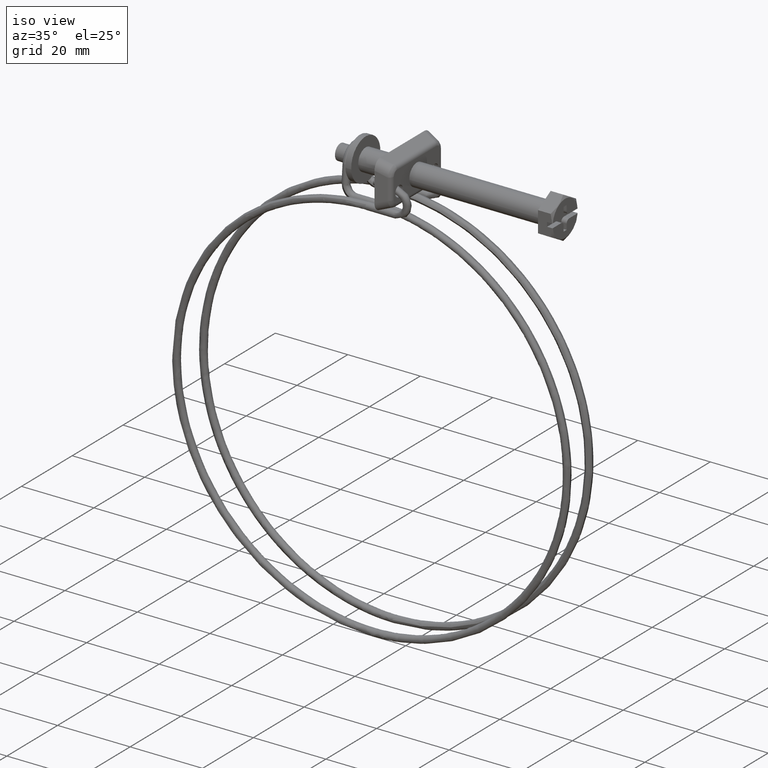
[diagram: clean part render]
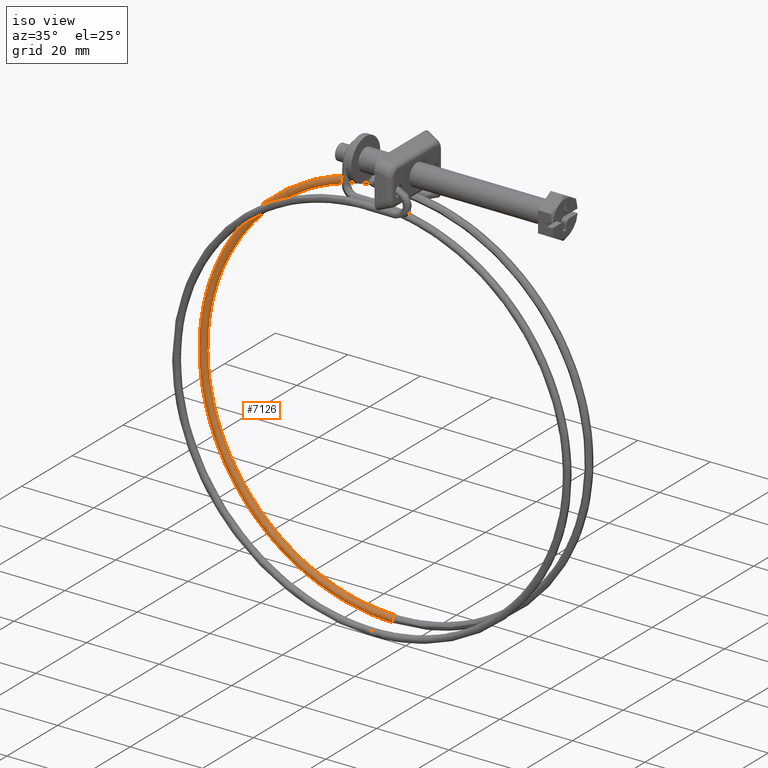
[diagram: same view with one face highlighted and labeled with its STEP entity id]
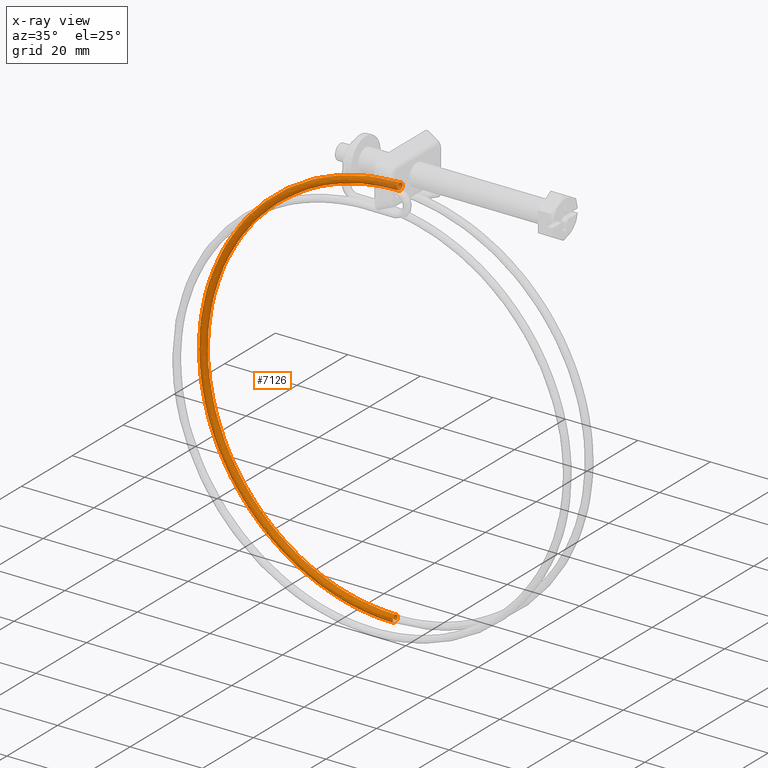
[diagram: x-ray of the same camera — body ghosted, the highlighted face saturated]
A machine part, iso view. The second image highlights one B-rep face of the part: STEP entity #7126.
The next image is the same camera in x-ray: the body ghosted, the highlighted face saturated — about 3% of this face is hidden behind the body in this view.
In plain terms, the highlighted face is a freeform B-spline surface patch.
Its self-contained STEP definition (entity closure, byte-faithful):
#4402=CARTESIAN_POINT('',(-45.950000000001253,5.993943870236258,-6.901769467997067));
#4403=VERTEX_POINT('',#4402);
#4404=CARTESIAN_POINT('',(-45.950000000001282,6.347558764410691,-6.850706005921239));
#4405=VERTEX_POINT('',#4404);
#4406=CARTESIAN_POINT('',(-45.950000000001253,5.993943870236258,-6.901769467997067));
#4407=CARTESIAN_POINT('',(-45.950000000001253,6.107565945187363,-6.863956765413446));
#4408=CARTESIAN_POINT('',(-45.950000000001261,6.227818169487891,-6.846056315023176));
#4409=CARTESIAN_POINT('',(-45.950000000001282,6.347558764410691,-6.850706005921239));
#4410=B_SPLINE_CURVE_WITH_KNOTS('',3,(#4406,#4407,#4408,#4409),.UNSPECIFIED.,.F.,.U.,(4,4),(0.942811844880573,1.0),.UNSPECIFIED.);
#4411=EDGE_CURVE('',#4403,#4405,#4410,.T.);
#4464=CARTESIAN_POINT('',(-45.949999999230187,5.310317513241352,-7.873517655510986));
#4465=VERTEX_POINT('',#4464);
#4471=CARTESIAN_POINT('',(-45.950000000001253,6.272445216753930,-8.849294495147621));
#4472=VERTEX_POINT('',#4471);
#4473=CARTESIAN_POINT('',(-45.950000000001253,6.272445216753930,-8.849294495147621));
#4474=CARTESIAN_POINT('',(-45.949999999893947,6.010825115170453,-8.839462292406115));
#4475=CARTESIAN_POINT('',(-45.949999999745771,5.754861540259292,-8.721993627042931));
#4476=CARTESIAN_POINT('',(-45.949999999462740,5.412625306768874,-8.353043853141834));
#4477=CARTESIAN_POINT('',(-45.949999999329293,5.316564235621505,-8.114710955283950));
#4478=CARTESIAN_POINT('',(-45.949999999230187,5.310317513241352,-7.873517655510986));
#4479=B_SPLINE_CURVE_WITH_KNOTS('',3,(#4473,#4474,#4475,#4476,#4477,#4478),.UNSPECIFIED.,.F.,.U.,(4,2,4),(0.500000000000000,0.625000000000000,0.740274454725661),.UNSPECIFIED.);
#4480=EDGE_CURVE('',#4472,#4465,#4479,.T.);
#4482=CARTESIAN_POINT('',(-45.950000000001268,7.064145850062413,-7.193325013423003));
#4483=VERTEX_POINT('',#4482);
#4484=CARTESIAN_POINT('',(-45.950000000001268,7.064145850062413,-7.193325013423003));
#4485=CARTESIAN_POINT('',(-45.950000000001253,7.228865698449958,-7.383012440738797));
#4486=CARTESIAN_POINT('',(-45.950000000001253,7.318735517172505,-7.636407405261935));
#4487=CARTESIAN_POINT('',(-45.950000000001253,7.299464152284783,-8.149171470304998));
#4488=CARTESIAN_POINT('',(-45.950000000001253,7.181995293398530,-8.405127567066247));
#4489=CARTESIAN_POINT('',(-45.950000000001253,6.798111222217271,-8.761201572999477));
#4490=CARTESIAN_POINT('',(-45.950000000001253,6.534059903814638,-8.859126838008681));
#4491=CARTESIAN_POINT('',(-45.950000000001253,6.272445216753930,-8.849294495147621));
#4492=B_SPLINE_CURVE_WITH_KNOTS('',3,(#4484,#4485,#4486,#4487,#4488,#4489,#4490,#4491),.UNSPECIFIED.,.F.,.U.,(4,2,2,4),(0.130000344779917,0.250000000000000,0.375000000000000,0.500000000000000),.UNSPECIFIED.);
#4493=EDGE_CURVE('',#4483,#4472,#4492,.T.);
#4521=CARTESIAN_POINT('',(-45.949999999230187,5.310317513241352,-7.873517655510986));
#4522=CARTESIAN_POINT('',(-45.949999999240788,5.309789336327403,-7.853162185249206));
#4523=CARTESIAN_POINT('',(-45.949999999251652,5.309900414179763,-7.832786206069345));
#4524=CARTESIAN_POINT('',(-45.949999999405279,5.320474988204586,-7.550725248928600));
#4525=CARTESIAN_POINT('',(-45.949999999585039,5.437917207267644,-7.294662084828541));
#4526=CARTESIAN_POINT('',(-45.949999999841452,5.733948792821269,-7.019888222631137));
#4527=CARTESIAN_POINT('',(-45.949999999927037,5.859285459218810,-6.946830031241563));
#4528=CARTESIAN_POINT('',(-45.950000000001253,5.993943870236258,-6.901769467997067));
#4529=B_SPLINE_CURVE_WITH_KNOTS('',3,(#4521,#4522,#4523,#4524,#4525,#4526,#4527,#4528),.UNSPECIFIED.,.F.,.U.,(4,2,2,4),(0.740274454725661,0.750000000000000,0.875000000000000,0.942811844880573),.UNSPECIFIED.);
#4530=EDGE_CURVE('',#4465,#4403,#4529,.T.);
#6100=CARTESIAN_POINT('',(-45.949999999998703,4.300002000001977,-113.850001000000010));
#6101=VERTEX_POINT('',#6100);
#6102=CARTESIAN_POINT('',(-45.949999999996209,3.302485887037371,-114.780271342044100));
#6103=VERTEX_POINT('',#6102);
#6104=CARTESIAN_POINT('',(-45.949999999998703,4.300002000001977,-113.850001000000010));
#6105=CARTESIAN_POINT('',(-45.949999999998347,4.038195655371243,-113.850000495566110));
#6106=CARTESIAN_POINT('',(-45.949999999997871,3.777998799464677,-113.957772896960090));
#6107=CARTESIAN_POINT('',(-45.949999999996962,3.424196145427989,-114.311556064540000));
#6108=CARTESIAN_POINT('',(-45.949999999996528,3.319730377710315,-114.542534340298000));
#6109=CARTESIAN_POINT('',(-45.949999999996209,3.302485887037371,-114.780271342044100));
#6110=B_SPLINE_CURVE_WITH_KNOTS('',3,(#6104,#6105,#6106,#6107,#6108,#6109),.UNSPECIFIED.,.F.,.U.,(4,2,4),(0.500000000000000,0.625000000000000,0.738888458187352),.UNSPECIFIED.);
#6111=EDGE_CURVE('',#6101,#6103,#6110,.T.);
#6132=CARTESIAN_POINT('',(-45.949999999970082,4.287435984473554,-115.849920191922910));
#6133=VERTEX_POINT('',#6132);
#6149=CARTESIAN_POINT('',(-45.949999999998703,4.300002000001980,-115.850001000000010));
#6150=VERTEX_POINT('',#6149);
#6151=CARTESIAN_POINT('',(-45.949999999970082,4.287435984473554,-115.849920191922910));
#6152=CARTESIAN_POINT('',(-45.949999999979617,4.291624042900677,-115.849974639911690));
#6153=CARTESIAN_POINT('',(-45.949999999989160,4.295812815062056,-115.850001617475900));
#6154=CARTESIAN_POINT('',(-45.949999999998703,4.300002000001980,-115.850001000000010));
#6155=B_SPLINE_CURVE_WITH_KNOTS('',3,(#6151,#6152,#6153,#6154),.UNSPECIFIED.,.F.,.U.,(4,4),(0.997999815404249,1.0),.UNSPECIFIED.);
#6156=EDGE_CURVE('',#6133,#6150,#6155,.T.);
#6158=CARTESIAN_POINT('',(-45.949999999998703,5.028950952946322,-115.534536709492700));
#6159=VERTEX_POINT('',#6158);
#6169=CARTESIAN_POINT('',(-45.949999999998703,5.028950952946322,-115.534536709492700));
#6170=CARTESIAN_POINT('',(-45.949999999998703,5.200678688409346,-115.351169156825510));
#6171=CARTESIAN_POINT('',(-45.949999999998703,5.300002000001980,-115.101327939052790));
#6172=CARTESIAN_POINT('',(-45.949999999998703,5.300002000001980,-114.588201612200610));
#6173=CARTESIAN_POINT('',(-45.949999999998703,5.192228903611790,-114.328014341236600));
#6174=CARTESIAN_POINT('',(-45.949999999998703,4.821988658765260,-113.957774096390000));
#6175=CARTESIAN_POINT('',(-45.949999999998703,4.561801387801131,-113.850001000000010));
#6176=CARTESIAN_POINT('',(-45.949999999998703,4.300002000001977,-113.850001000000010));
#6177=B_SPLINE_CURVE_WITH_KNOTS('',3,(#6169,#6170,#6171,#6172,#6173,#6174,#6175,#6176),.UNSPECIFIED.,.F.,.U.,(4,2,2,4),(0.130000225952701,0.250000000000000,0.375000000000000,0.500000000000000),.UNSPECIFIED.);
#6178=EDGE_CURVE('',#6159,#6101,#6177,.T.);
#6231=CARTESIAN_POINT('',(-45.949999999996209,3.302485887037371,-114.780271342044100));
#6232=CARTESIAN_POINT('',(-45.949999999995917,3.300804588170081,-114.803466287220900));
#6233=CARTESIAN_POINT('',(-45.949999999995633,3.299953544920431,-114.826725569198200));
#6234=CARTESIAN_POINT('',(-45.949999999991860,3.299960689537950,-115.111797701207910));
#6235=CARTESIAN_POINT('',(-45.949999999987106,3.407742793963541,-115.371985962488490));
#6236=CARTESIAN_POINT('',(-45.949999999977777,3.775038524064588,-115.739265955748810));
#6237=CARTESIAN_POINT('',(-45.949999999973258,4.029889019312632,-115.846533327676200));
#6238=CARTESIAN_POINT('',(-45.949999999970082,4.287435984473554,-115.849920191922910));
#6239=B_SPLINE_CURVE_WITH_KNOTS('',3,(#6231,#6232,#6233,#6234,#6235,#6236,#6237,#6238),.UNSPECIFIED.,.F.,.U.,(4,2,2,4),(0.738888458187352,0.750000000000000,0.875000000000000,0.997999815404249),.UNSPECIFIED.);
#6240=EDGE_CURVE('',#6103,#6133,#6239,.T.);
#6785=CARTESIAN_POINT('',(-45.950000000001303,7.064144647543413,-7.193324183006714));
#6786=CARTESIAN_POINT('',(-45.950000000001303,7.228865114062820,-7.383012036945601));
#6787=CARTESIAN_POINT('',(-45.950000000001303,7.318735461905893,-7.636407741084121));
#6788=CARTESIAN_POINT('',(-45.950000000001303,7.299464040711110,-8.149172526626160));
#6789=CARTESIAN_POINT('',(-45.950000000001303,7.181995167255571,-8.405128616700951));
#6790=CARTESIAN_POINT('',(-45.950000000001303,6.798111075806209,-8.761202600783092));
#6791=CARTESIAN_POINT('',(-45.950000000001303,6.534059751829570,-8.859127850762231));
#6792=CARTESIAN_POINT('',(-45.950000000001303,6.010830378827491,-8.839463135257349));
#6793=CARTESIAN_POINT('',(-45.950000000001303,5.754874288752690,-8.721994261801799));
#6794=CARTESIAN_POINT('',(-45.950000000001303,5.398800304670540,-8.338110170352460));
#6795=CARTESIAN_POINT('',(-45.950000000001303,5.300875054691409,-8.074058846375809));
#6796=CARTESIAN_POINT('',(-45.950000000001303,5.320539770196290,-7.550829473373740));
#6797=CARTESIAN_POINT('',(-45.950000000001303,5.438008643651830,-7.294873383298940));
#6798=CARTESIAN_POINT('',(-45.950000000001303,5.821892735101191,-6.938799399216780));
#6799=CARTESIAN_POINT('',(-45.950000000001303,6.085944059077829,-6.840874149237660));
#6800=CARTESIAN_POINT('',(-45.950000000001303,6.347558745578870,-6.850706506990100));
#6801=CARTESIAN_POINT('',(-53.042240930008489,7.064411011787128,-7.193357530854625));
#6802=CARTESIAN_POINT('',(-53.017811388093627,7.229131024462459,-7.383045212856564));
#6803=CARTESIAN_POINT('',(-52.984856884428893,7.319000756627483,-7.636440685430350));
#6804=CARTESIAN_POINT('',(-52.917676367348797,7.299728071376870,-8.149205000130271));
#6805=CARTESIAN_POINT('',(-52.883876716044199,7.182258557233170,-8.405160853931530));
#6806=CARTESIAN_POINT('',(-52.836314024083002,6.798373558888881,-8.761234506185279));
#6807=CARTESIAN_POINT('',(-52.822843866543593,6.534321976926800,-8.859159662319829));
#6808=CARTESIAN_POINT('',(-52.824131610583699,6.011092628607190,-8.839494955793329));
#6809=CARTESIAN_POINT('',(-52.838881582404198,5.755136820946750,-8.722026185106500));
#6810=CARTESIAN_POINT('',(-52.888265419416904,5.399063778011320,-8.338142438246621));
#6811=CARTESIAN_POINT('',(-52.922595187186893,5.301139178329070,-8.074091354353660));
#6812=CARTESIAN_POINT('',(-52.991146735227701,5.320805182785060,-7.550862461915460));
#6813=CARTESIAN_POINT('',(-53.024946386604299,5.438274687095330,-7.294906609372339));
#6814=CARTESIAN_POINT('',(-53.072509078526693,5.822159661126050,-6.938832960160030));
#6815=CARTESIAN_POINT('',(-53.085979236028699,6.086211233965480,-6.840907805098360));
#6816=CARTESIAN_POINT('',(-53.085335364026953,6.347825908585415,-6.850740158305275));
#6817=CARTESIAN_POINT('',(-60.129318017260481,7.037658292734140,-8.603298361143841));
#6818=CARTESIAN_POINT('',(-60.080476900812677,7.202469995884862,-8.788129339616518));
#6819=CARTESIAN_POINT('',(-60.014592130708927,7.292463418406178,-9.034973307270391));
#6820=CARTESIAN_POINT('',(-59.880280506333897,7.273442895236849,-9.534381829074841));
#6821=CARTESIAN_POINT('',(-59.812706062583203,7.156100252815151,-9.783618157611670));
#6822=CARTESIAN_POINT('',(-59.717615660002807,6.772393793018501,-10.130236128388660));
#6823=CARTESIAN_POINT('',(-59.690685251943108,6.508392775838610,-10.225483355268100));
#6824=CARTESIAN_POINT('',(-59.693259792853397,5.985158593518050,-10.206074658144400));
#6825=CARTESIAN_POINT('',(-59.722748888292998,5.729147416946209,-10.091538249739340));
#6826=CARTESIAN_POINT('',(-59.821480241591892,5.372888999811660,-9.717472236218271));
#6827=CARTESIAN_POINT('',(-59.890114528313603,5.274835538982380,-9.460246067228281));
#6828=CARTESIAN_POINT('',(-60.027167206247313,5.294244236081790,-8.950645534774750));
#6829=CARTESIAN_POINT('',(-60.094741649900797,5.411586878503490,-8.701409206140710));
#6830=CARTESIAN_POINT('',(-60.189832052529802,5.795293338297101,-8.354791235266530));
#6831=CARTESIAN_POINT('',(-60.216762460638087,6.059294355498251,-8.259544008484301));
#6832=CARTESIAN_POINT('',(-60.215475190158649,6.320911446655495,-8.269248357046157));
#6833=CARTESIAN_POINT('',(-73.231725198278596,6.935706781065314,-14.030567938202500));
#6834=CARTESIAN_POINT('',(-73.137755786855010,7.100869633271512,-14.196705907124510));
#6835=CARTESIAN_POINT('',(-73.010994698771967,7.191336742228222,-14.418333730607859));
#6836=CARTESIAN_POINT('',(-72.752581599142403,7.173281868585870,-14.866337029488641));
#6837=CARTESIAN_POINT('',(-72.622569609930508,7.056425060718990,-15.089710523218301));
#6838=CARTESIAN_POINT('',(-72.439617420981207,6.673402264749500,-15.399934448851649));
#6839=CARTESIAN_POINT('',(-72.387803810240285,6.409594866946720,-15.484874573597651));
#6840=CARTESIAN_POINT('',(-72.392757179761787,5.886342174657520,-15.466451233158400));
#6841=CARTESIAN_POINT('',(-72.449493657941403,5.630118982714791,-15.363201215733699));
#6842=CARTESIAN_POINT('',(-72.639450969201008,5.273150724696920,-15.026922752230700));
#6843=CARTESIAN_POINT('',(-72.771502076915510,5.174603809441950,-14.795965052486119));
#6844=CARTESIAN_POINT('',(-73.035188913272208,5.193027149905480,-14.338818829138379));
#6845=CARTESIAN_POINT('',(-73.165200902581404,5.309883957772360,-14.115445335505900));
#6846=CARTESIAN_POINT('',(-73.348153091482004,5.692906753744889,-13.805221409969761));
#6847=CARTESIAN_POINT('',(-73.399966702174297,5.956714151526411,-13.720281285126600));
#6848=CARTESIAN_POINT('',(-73.397490017437889,6.218340497674046,-13.729492955346210));
#6849=CARTESIAN_POINT('',(-79.240741991538471,6.860281837913872,-18.045726640449349));
#6850=CARTESIAN_POINT('',(-79.126077719887249,7.025704461008743,-18.198036009609769));
#6851=CARTESIAN_POINT('',(-78.971400068719447,7.116521990818367,-18.401009588796381));
#6852=CARTESIAN_POINT('',(-78.656076715985193,7.099181479421911,-18.810984647730500));
#6853=CARTESIAN_POINT('',(-78.497432218471289,6.982684079254690,-19.015225492507099));
#6854=CARTESIAN_POINT('',(-78.274188514206898,6.600167039924530,-19.298526054866951));
#6855=CARTESIAN_POINT('',(-78.210964004796196,6.336502876701470,-19.375841254907051));
#6856=CARTESIAN_POINT('',(-78.217008253635498,5.813236491217560,-19.358146855510750));
#6857=CARTESIAN_POINT('',(-78.286239792404089,5.556856455837980,-19.263246215252451));
#6858=CARTESIAN_POINT('',(-78.518031355416397,5.199363076086140,-18.954921993283900));
#6859=CARTESIAN_POINT('',(-78.679164045870394,5.100451116152331,-18.743397020663799));
#6860=CARTESIAN_POINT('',(-79.000922569068592,5.118145515533429,-18.325055123792250));
#6861=CARTESIAN_POINT('',(-79.159567066582497,5.234642915697610,-18.120814279015651));
#6862=CARTESIAN_POINT('',(-79.382810770749700,5.617159955030820,-17.837513716704350));
#6863=CARTESIAN_POINT('',(-79.446035280208889,5.880824118259940,-17.760198516567051));
#6864=CARTESIAN_POINT('',(-79.443013155789302,6.142457311001900,-17.769045716265200));
#6865=CARTESIAN_POINT('',(-89.268742537910683,6.671903282078745,-28.073838911888039));
#6866=CARTESIAN_POINT('',(-89.119545455908906,6.837974612852580,-28.191615086002621));
#6867=CARTESIAN_POINT('',(-88.918284384109569,6.929667224130254,-28.348004725693428));
#6868=CARTESIAN_POINT('',(-88.507996825425991,6.914110639643471,-28.663014520519152));
#6869=CARTESIAN_POINT('',(-88.301574234104805,6.798510763197021,-28.819476739144001));
#6870=CARTESIAN_POINT('',(-88.011097446836104,6.417256714524171,-29.035543469407351));
#6871=CARTESIAN_POINT('',(-87.928831958397993,6.153950240950520,-29.093817478337549));
#6872=CARTESIAN_POINT('',(-87.936696520528798,5.630649660419110,-29.077943412546851));
#6873=CARTESIAN_POINT('',(-88.026778142447796,5.373877950882060,-29.003893087641000));
#6874=CARTESIAN_POINT('',(-88.328377100078896,5.015073221366370,-28.765377038250900));
#6875=CARTESIAN_POINT('',(-88.538037239982700,4.915249660880380,-28.602380055589450));
#6876=CARTESIAN_POINT('',(-88.956698014149595,4.931123726686260,-28.280941489440750));
#6877=CARTESIAN_POINT('',(-89.163120605470908,5.046723603135740,-28.124479270815900));
#6878=CARTESIAN_POINT('',(-89.453597392836699,5.427977651805549,-27.908412540503949));
#6879=CARTESIAN_POINT('',(-89.535862881226308,5.691284125373130,-27.850138531670950));
#6880=CARTESIAN_POINT('',(-89.531930600160905,5.952934415638835,-27.858075564566299));
#6881=CARTESIAN_POINT('',(-93.283783373378384,6.559023782915690,-34.082847132095239));
#6882=CARTESIAN_POINT('',(-93.120761785396695,6.725483792744761,-34.179932430954722));
#6883=CARTESIAN_POINT('',(-92.900851991754337,6.817700716977718,-34.308410883139793));
#6884=CARTESIAN_POINT('',(-92.452547450800907,6.803212988390450,-34.566521383509198));
#6885=CARTESIAN_POINT('',(-92.226997874375797,6.688150871367061,-34.694356607302048));
#6886=CARTESIAN_POINT('',(-91.909605694266801,6.307653554947510,-34.870139580738652));
#6887=CARTESIAN_POINT('',(-91.819717538423802,6.044561394366090,-34.917004888258987));
#6888=CARTESIAN_POINT('',(-91.828310825784797,5.521240325560230,-34.902221491729250));
#6889=CARTESIAN_POINT('',(-91.926739353070005,5.264233940932000,-34.840663821383103));
#6890=CARTESIAN_POINT('',(-92.256284276852199,4.904643504371120,-34.643973968081703));
#6891=CARTESIAN_POINT('',(-92.485371390907588,4.804273750197840,-34.510052968320501));
#6892=CARTESIAN_POINT('',(-92.942825004125311,4.819057146715460,-34.246674906719051));
#6893=CARTESIAN_POINT('',(-93.168374580501890,4.934119263732770,-34.118839682901950));
#6894=CARTESIAN_POINT('',(-93.485766760659502,5.314616580158400,-33.943056709441002));
#6895=CARTESIAN_POINT('',(-93.575654916551002,5.577708740736781,-33.896191401969247));
#6896=CARTESIAN_POINT('',(-93.571358272870498,5.839369275139715,-33.903583100234151));
#6897=CARTESIAN_POINT('',(-98.710841336703311,6.312898233923742,-47.185053095692233));
#6898=CARTESIAN_POINT('',(-98.529134375152665,6.480205654605841,-47.237027467959962));
#6899=CARTESIAN_POINT('',(-98.284018737855178,6.573565703194394,-47.304653031355237));
#6900=CARTESIAN_POINT('',(-97.784329972646489,6.561408329363120,-47.438709819086597));
#6901=CARTESIAN_POINT('',(-97.532928126387702,6.447518653140940,-47.504131527584903));
#6902=CARTESIAN_POINT('',(-97.179156767541500,6.068671189245530,-47.592086529831903));
#6903=CARTESIAN_POINT('',(-97.078965719910613,5.806046280887931,-47.614078211369197));
#6904=CARTESIAN_POINT('',(-97.088543961517601,5.282680542874081,-47.601672727880000));
#6905=CARTESIAN_POINT('',(-97.198254269438593,5.025162511883260,-47.567351953724497));
#6906=CARTESIAN_POINT('',(-97.565571307327104,4.663859050997680,-47.461852948473691));
#6907=CARTESIAN_POINT('',(-97.820916160350606,4.562298467369450,-47.391324362623813));
#6908=CARTESIAN_POINT('',(-98.330802655461497,4.574703950870750,-47.254531722081602));
#6909=CARTESIAN_POINT('',(-98.582204501768913,4.688593627099000,-47.189110013607603));
#6910=CARTESIAN_POINT('',(-98.935975860566600,5.067441090988340,-47.101155011384897));
#6911=CARTESIAN_POINT('',(-99.036166908148800,5.330065999348980,-47.079163329799002));
#6912=CARTESIAN_POINT('',(-99.031377787345363,5.591748868355905,-47.085366071543604));
#6913=CARTESIAN_POINT('',(-100.120725091893700,6.179748984292931,-54.273097793995603));
#6914=CARTESIAN_POINT('',(-99.934164433256939,6.347514804853780,-54.300669784440970));
#6915=CARTESIAN_POINT('',(-99.682501347049936,6.441493217083088,-54.335377482090472));
#6916=CARTESIAN_POINT('',(-99.169465058582404,6.430596429353050,-54.402328442189798));
#6917=CARTESIAN_POINT('',(-98.911347848173293,6.317340975253230,-54.433988076878201));
#6918=CARTESIAN_POINT('',(-98.548126664287295,5.939385985413869,-54.474433266044301));
#6919=CARTESIAN_POINT('',(-98.445259346099306,5.677013833266840,-54.482969765841801));
#6920=CARTESIAN_POINT('',(-98.455093438509905,5.153623931817700,-54.471850594685598));
#6921=CARTESIAN_POINT('',(-98.567734292412609,4.895829129966760,-54.452263393737802));
#6922=CARTESIAN_POINT('',(-98.944862983159496,4.533599022770041,-54.396093321932099));
#6923=CARTESIAN_POINT('',(-99.207028524613904,4.431394269826615,-54.359856336962800));
#6924=CARTESIAN_POINT('',(-99.730534941417488,4.442513440979715,-54.291539030714702));
#6925=CARTESIAN_POINT('',(-99.988652151826599,4.555768895079540,-54.259879396026413));
#6926=CARTESIAN_POINT('',(-100.351873335712600,4.933723884921930,-54.219434206860200));
#6927=CARTESIAN_POINT('',(-100.454740653900600,5.196096037065930,-54.210897707062813));
#6928=CARTESIAN_POINT('',(-100.449823607695290,5.457790987790499,-54.216457292640847));
#6929=CARTESIAN_POINT('',(-100.120725091893700,5.913345721899495,-68.454764134318253));
#6930=CARTESIAN_POINT('',(-99.934164433256939,6.082028699340981,-68.433512350206229));
#6931=CARTESIAN_POINT('',(-99.682501347049936,6.177244320587935,-68.402358671283196));
#6932=CARTESIAN_POINT('',(-99.169465058582404,6.168869687123190,-68.335045696639611));
#6933=CARTESIAN_POINT('',(-98.911347848173293,6.056883171377290,-68.299154881061895));
#6934=CARTESIAN_POINT('',(-98.548126664287295,5.680713824920749,-68.244543431131305));
#6935=CARTESIAN_POINT('',(-98.445259346099306,5.418847382127010,-68.226159084922799));
#6936=CARTESIAN_POINT('',(-98.455093438509905,4.895409134975781,-68.217613540574092));
#6937=CARTESIAN_POINT('',(-98.567734292412609,4.637060575787790,-68.227504964456500));
#6938=CARTESIAN_POINT('',(-98.944862983159496,4.272976454055826,-68.270031189659505));
#6939=CARTESIAN_POINT('',(-99.207028524613904,4.169482860629930,-68.302404121616206));
#6940=CARTESIAN_POINT('',(-99.730534941417488,4.178028404981705,-68.371090830460503));
#6941=CARTESIAN_POINT('',(-99.988652151826599,4.290014920727605,-68.406981646038204));
#6942=CARTESIAN_POINT('',(-100.351873335712600,4.666184267181110,-68.461593095968709));
#6943=CARTESIAN_POINT('',(-100.454740653900600,4.928050709977890,-68.479977442177301));
#6944=CARTESIAN_POINT('',(-100.449823607695290,5.189769833553505,-68.484250214351647));
#6945=CARTESIAN_POINT('',(-98.710841336799561,5.780196472267008,-75.542808832523960));
#6946=CARTESIAN_POINT('',(-98.529134375248859,5.949337849586118,-75.497154666585971));
#6947=CARTESIAN_POINT('',(-98.284018737951470,6.045171834476638,-75.433083121873281));
#6948=CARTESIAN_POINT('',(-97.784329972742796,6.038057787113131,-75.298664319645297));
#6949=CARTESIAN_POINT('',(-97.532928126483995,5.926705493489580,-75.229011430306301));
#6950=CARTESIAN_POINT('',(-97.179156767686308,5.551428621089100,-75.126890167246302));
#6951=CARTESIAN_POINT('',(-97.078965720006906,5.289814934508970,-75.095050639273694));
#6952=CARTESIAN_POINT('',(-97.088543961613809,4.766352523925480,-75.087791407209309));
#6953=CARTESIAN_POINT('',(-97.198254269583501,4.507727193871289,-75.112416404348110));
#6954=CARTESIAN_POINT('',(-97.565571307423298,4.142716425831226,-75.204271563069000));
#6955=CARTESIAN_POINT('',(-97.820916160446899,4.038578663087100,-75.270936095833491));
#6956=CARTESIAN_POINT('',(-98.330802655557804,4.045837895096750,-75.408098138971795));
#6957=CARTESIAN_POINT('',(-98.582204501865206,4.157190188708150,-75.477751028359492));
#6958=CARTESIAN_POINT('',(-98.935975860662907,4.532467061114709,-75.579872291273688));
#6959=CARTESIAN_POINT('',(-99.036166908245093,4.794080747697870,-75.611711819294896));
#6960=CARTESIAN_POINT('',(-99.031377787441599,5.055811952992656,-75.615341435327096));
#6961=CARTESIAN_POINT('',(-93.283783373280230,5.534070923278419,-88.645014796315749));
#6962=CARTESIAN_POINT('',(-93.120761785298598,5.704059711452802,-88.554249703793118));
#6963=CARTESIAN_POINT('',(-92.900851991656154,5.801036820693316,-88.429325270378470));
#6964=CARTESIAN_POINT('',(-92.452547450702809,5.796253128085800,-88.170852755417101));
#6965=CARTESIAN_POINT('',(-92.226997874277600,5.686073275263470,-88.038786350686308));
#6966=CARTESIAN_POINT('',(-91.909605694120103,5.312446255387120,-87.848837116533886));
#6967=CARTESIAN_POINT('',(-91.819717538325705,5.051299821024740,-87.792123962626818));
#6968=CARTESIAN_POINT('',(-91.828310825686700,4.527792741227180,-87.787242643700296));
#6969=CARTESIAN_POINT('',(-91.926739352923192,4.268655764822550,-87.839104536932496));
#6970=CARTESIAN_POINT('',(-92.256284276754101,3.901931972451705,-88.022150543558197));
#6971=CARTESIAN_POINT('',(-92.485371390809391,3.796603380258711,-88.152207490379809));
#6972=CARTESIAN_POINT('',(-92.942825004027199,3.801484699239890,-88.415954954577401));
#6973=CARTESIAN_POINT('',(-93.168374580403793,3.911664552074380,-88.548021359259593));
#6974=CARTESIAN_POINT('',(-93.485766760561305,4.285291571944645,-88.737970593557804));
#6975=CARTESIAN_POINT('',(-93.575654916452891,4.546438006303999,-88.794683747416300));
#6976=CARTESIAN_POINT('',(-93.571358272772400,4.808191546199740,-88.797124406879547));
#6977=CARTESIAN_POINT('',(-89.268742537888727,5.421191424125432,-94.654023016375120));
#6978=CARTESIAN_POINT('',(-89.119545455908252,5.591568891355044,-94.542567048594080));
#6979=CARTESIAN_POINT('',(-88.918284384107793,5.689070313550889,-94.389731427630892));
#6980=CARTESIAN_POINT('',(-88.507996825376210,5.685355476845860,-94.074359618308904));
#6981=CARTESIAN_POINT('',(-88.301574234054698,5.575713383449620,-93.913666218794987));
#6982=CARTESIAN_POINT('',(-88.011097446834299,5.202843095823530,-93.683433227767594));
#6983=CARTESIAN_POINT('',(-87.928831958396003,4.941910974447290,-93.615311372377803));
#6984=CARTESIAN_POINT('',(-87.936696520526894,4.418383406381365,-93.611520722712200));
#6985=CARTESIAN_POINT('',(-88.026778142446005,4.159011754873405,-93.675875270552694));
#6986=CARTESIAN_POINT('',(-88.328377100028888,3.791502255463465,-93.900747473339592));
#6987=CARTESIAN_POINT('',(-88.538037239932905,3.685627469577105,-94.059880402988313));
#6988=CARTESIAN_POINT('',(-88.956698014148898,3.689418119282185,-94.381688371684106));
#6989=CARTESIAN_POINT('',(-89.163120605470311,3.799060212678435,-94.542381771198009));
#6990=CARTESIAN_POINT('',(-89.453597392787913,4.171930500301485,-94.772614762274003));
#6991=CARTESIAN_POINT('',(-89.535862881226208,4.432862621680756,-94.840736617615207));
#6992=CARTESIAN_POINT('',(-89.531930600160749,4.694626405713718,-94.842631942448008));
#6993=CARTESIAN_POINT('',(-79.240741991556703,5.232812868266832,-104.682135287913890));
#6994=CARTESIAN_POINT('',(-79.126077719884194,5.403839043173175,-104.536146125086600));
#6995=CARTESIAN_POINT('',(-78.971400068717529,5.502215546842566,-104.336726564625290));
#6996=CARTESIAN_POINT('',(-78.656076716031393,5.500284637041271,-103.926389491098600));
#6997=CARTESIAN_POINT('',(-78.497432218517787,5.391540067359730,-103.717917465432390));
#6998=CARTESIAN_POINT('',(-78.274188514205093,5.019932770397049,-103.420450642308000));
#6999=CARTESIAN_POINT('',(-78.210964004794491,4.759358338688450,-103.333287595905200));
#7000=CARTESIAN_POINT('',(-78.217008253633793,4.235796575568945,-103.331317279748010));
#7001=CARTESIAN_POINT('',(-78.286239792402284,3.976033249915665,-103.416522142941200));
#7002=CARTESIAN_POINT('',(-78.518031355462796,3.607212400735775,-103.711202518307200));
#7003=CARTESIAN_POINT('',(-78.679164045916508,3.500426014303305,-103.918863437914990));
#7004=CARTESIAN_POINT('',(-79.000922569065693,3.502396330420995,-104.337574737432010));
#7005=CARTESIAN_POINT('',(-79.159567066579299,3.611140900102540,-104.546046763098000));
#7006=CARTESIAN_POINT('',(-79.382810770794805,3.982748197068255,-104.843513586174000));
#7007=CARTESIAN_POINT('',(-79.446035280205393,4.243322628773825,-104.930676632625410));
#7008=CARTESIAN_POINT('',(-79.443013155785749,4.505103510333572,-104.931661790704000));
#7009=CARTESIAN_POINT('',(-73.231725198114162,5.157387925127382,-108.697293990166700));
#7010=CARTESIAN_POINT('',(-73.137755786686881,5.328673870923302,-108.537476227560010));
#7011=CARTESIAN_POINT('',(-73.010994698558946,5.427400795440292,-108.319402422847110));
#7012=CARTESIAN_POINT('',(-72.752581598929098,5.426184247899770,-107.871037109374400));
#7013=CARTESIAN_POINT('',(-72.622569609716905,5.317799085920920,-107.643432434755600));
#7014=CARTESIAN_POINT('',(-72.439617420767505,4.946697545591481,-107.319042248358000));
#7015=CARTESIAN_POINT('',(-72.387803809977896,4.686266348444370,-107.224254277201000));
#7016=CARTESIAN_POINT('',(-72.392757179450783,4.162690892133194,-107.223012902232400));
#7017=CARTESIAN_POINT('',(-72.449493657727601,3.902770723041550,-107.316567142543210));
#7018=CARTESIAN_POINT('',(-72.639450968987404,3.533424752133780,-107.639201759394600));
#7019=CARTESIAN_POINT('',(-72.771502076702205,3.426273321017910,-107.866295406078000));
#7020=CARTESIAN_POINT('',(-73.035188913059102,3.427514696060785,-108.323811031973190));
#7021=CARTESIAN_POINT('',(-73.165200902271295,3.535899858038110,-108.551415706689400));
#7022=CARTESIAN_POINT('',(-73.348153091220794,3.907001398369071,-108.875805892990000));
#7023=CARTESIAN_POINT('',(-73.399966701913101,4.167432595511614,-108.970593864195390));
#7024=CARTESIAN_POINT('',(-73.397490017176693,4.429220323668722,-108.971214551679690));
#7025=CARTESIAN_POINT('',(-60.129318017419934,5.055436413458079,-114.124563567111690));
#7026=CARTESIAN_POINT('',(-60.080476900975789,5.227073508309907,-113.946052794990290));
#7027=CARTESIAN_POINT('',(-60.014592130916938,5.326274119267421,-113.702762846019000));
#7028=CARTESIAN_POINT('',(-59.880280506542299,5.326023221230060,-113.202992309717800));
#7029=CARTESIAN_POINT('',(-59.812706062791712,5.218123893806039,-112.949524800291400));
#7030=CARTESIAN_POINT('',(-59.717615660211507,4.847706017309830,-112.588740568750000));
#7031=CARTESIAN_POINT('',(-59.690685252200502,4.587468439558060,-112.483645495459400));
#7032=CARTESIAN_POINT('',(-59.693259793159399,4.063874473278251,-112.483389476981200));
#7033=CARTESIAN_POINT('',(-59.722748888501712,3.803742288806595,-112.588230108369400));
#7034=CARTESIAN_POINT('',(-59.821480241800401,3.433686477009430,-112.948652275336400));
#7035=CARTESIAN_POINT('',(-59.890114528521899,3.326041591470910,-113.202014391362600));
#7036=CARTESIAN_POINT('',(-60.027167206455303,3.326297609874860,-113.711984326461010));
#7037=CARTESIAN_POINT('',(-60.094741650205897,3.434196937300395,-113.965451835790010));
#7038=CARTESIAN_POINT('',(-60.189832052786002,3.804614813795085,-114.326236067428790));
#7039=CARTESIAN_POINT('',(-60.216762460894287,4.064852391551410,-114.431331140670590));
#7040=CARTESIAN_POINT('',(-60.215475190414850,4.326649374689795,-114.431459149909800));
#7041=CARTESIAN_POINT('',(-53.042240966163533,5.028950612263794,-115.534537753721300));
#7042=CARTESIAN_POINT('',(-53.017811424095790,5.200678941583625,-115.351170108100310));
#7043=CARTESIAN_POINT('',(-52.984856920193778,5.300002624313297,-115.101328423851500));
#7044=CARTESIAN_POINT('',(-52.917676402697197,5.300002618415991,-114.588201623717590));
#7045=CARTESIAN_POINT('',(-52.883876751182498,5.192229519072780,-114.328014351587400));
#7046=CARTESIAN_POINT('',(-52.836314058923612,4.821989270089830,-113.957774102416200));
#7047=CARTESIAN_POINT('',(-52.822843901261997,4.561801997972441,-113.850001003110190));
#7048=CARTESIAN_POINT('',(-52.824131645267897,4.038203222543699,-113.850000997083600));
#7049=CARTESIAN_POINT('',(-52.838881617249598,3.778015952900515,-113.957774090411410));
#7050=CARTESIAN_POINT('',(-52.888265454563303,3.407775712429185,-114.328014331077000));
#7051=CARTESIAN_POINT('',(-52.922595222544501,3.300002619064140,-114.588201600728400));
#7052=CARTESIAN_POINT('',(-52.991146771010300,3.300002625081785,-115.111800376375200));
#7053=CARTESIAN_POINT('',(-53.024946422525112,3.407775724428015,-115.371987648555010));
#7054=CARTESIAN_POINT('',(-53.072509114783898,3.778015973409420,-115.742227897631000));
#7055=CARTESIAN_POINT('',(-53.085979272372597,4.038203245529855,-115.850000997035000));
#7056=CARTESIAN_POINT('',(-53.085335400369651,4.300002633244238,-115.850001000048290));
#7057=CARTESIAN_POINT('',(-45.949999999998703,5.028949982885855,-115.534537745304500));
#7058=CARTESIAN_POINT('',(-45.949999999998703,5.200678314368781,-115.351170097699000));
#7059=CARTESIAN_POINT('',(-45.949999999998703,5.300002000001980,-115.101328412287100));
#7060=CARTESIAN_POINT('',(-45.949999999998703,5.300002000001980,-114.588201612200610));
#7061=CARTESIAN_POINT('',(-45.949999999998703,5.192228903611790,-114.328014341236600));
#7062=CARTESIAN_POINT('',(-45.949999999998703,4.821988658765260,-113.957774096390000));
#7063=CARTESIAN_POINT('',(-45.949999999998703,4.561801387801131,-113.850001000000010));
#7064=CARTESIAN_POINT('',(-45.949999999998703,4.038202612202825,-113.850001000000010));
#7065=CARTESIAN_POINT('',(-45.949999999998703,3.778015341238695,-113.957774096390000));
#7066=CARTESIAN_POINT('',(-45.949999999998703,3.407775096392165,-114.328014341236600));
#7067=CARTESIAN_POINT('',(-45.949999999998703,3.300002000001980,-114.588201612200610));
#7068=CARTESIAN_POINT('',(-45.949999999998703,3.300002000001980,-115.111800387798990));
#7069=CARTESIAN_POINT('',(-45.949999999998703,3.407775096392165,-115.371987658763000));
#7070=CARTESIAN_POINT('',(-45.949999999998703,3.778015341238695,-115.742227903609600));
#7071=CARTESIAN_POINT('',(-45.949999999998703,4.038202612202830,-115.850001000000010));
#7072=CARTESIAN_POINT('',(-45.949999999998703,4.300002000001980,-115.850001000000010));
#7073=B_SPLINE_SURFACE_WITH_KNOTS('',3,3,((#6785,#6801,#6817,#6833,#6849,#6865,#6881,#6897,#6913,#6929,#6945,#6961,#6977,#6993,#7009,#7025,#7041,#7057),(#6786,#6802,#6818,#6834,#6850,#6866,#6882,#6898,#6914,#6930,#6946,#6962,#6978,#6994,#7010,#7026,#7042,#7058),(#6787,#6803,#6819,#6835,#6851,#6867,#6883,#6899,#6915,#6931,#6947,#6963,#6979,#6995,#7011,#7027,#7043,#7059),(#6788,#6804,#6820,#6836,#6852,#6868,#6884,#6900,#6916,#6932,#6948,#6964,#6980,#6996,#7012,#7028,#7044,#7060),(#6789,#6805,#6821,#6837,#6853,#6869,#6885,#6901,#6917,#6933,#6949,#6965,#6981,#6997,#7013,#7029,#7045,#7061),(#6790,#6806,#6822,#6838,#6854,#6870,#6886,#6902,#6918,#6934,#6950,#6966,#6982,#6998,#7014,#7030,#7046,#7062),(#6791,#6807,#6823,#6839,#6855,#6871,#6887,#6903,#6919,#6935,#6951,#6967,#6983,#6999,#7015,#7031,#7047,#7063),(#6792,#6808,#6824,#6840,#6856,#6872,#6888,#6904,#6920,#6936,#6952,#6968,#6984,#7000,#7016,#7032,#7048,#7064),(#6793,#6809,#6825,#6841,#6857,#6873,#6889,#6905,#6921,#6937,#6953,#6969,#6985,#7001,#7017,#7033,#7049,#7065),(#6794,#6810,#6826,#6842,#6858,#6874,#6890,#6906,#6922,#6938,#6954,#6970,#6986,#7002,#7018,#7034,#7050,#7066),(#6795,#6811,#6827,#6843,#6859,#6875,#6891,#6907,#6923,#6939,#6955,#6971,#6987,#7003,#7019,#7035,#7051,#7067),(#6796,#6812,#6828,#6844,#6860,#6876,#6892,#6908,#6924,#6940,#6956,#6972,#6988,#7004,#7020,#7036,#7052,#7068),(#6797,#6813,#6829,#6845,#6861,#6877,#6893,#6909,#6925,#6941,#6957,#6973,#6989,#7005,#7021,#7037,#7053,#7069),(#6798,#6814,#6830,#6846,#6862,#6878,#6894,#6910,#6926,#6942,#6958,#6974,#6990,#7006,#7022,#7038,#7054,#7070),(#6799,#6815,#6831,#6847,#6863,#6879,#6895,#6911,#6927,#6943,#6959,#6975,#6991,#7007,#7023,#7039,#7055,#7071),(#6800,#6816,#6832,#6848,#6864,#6880,#6896,#6912,#6928,#6944,#6960,#6976,#6992,#7008,#7024,#7040,#7056,#7072)),.UNSPECIFIED.,.F.,.F.,.U.,(4,2,2,2,2,2,2,4),(4,2,2,2,2,2,2,2,4),(0.0,0.753982236861552,1.539380400259003,2.324778563656453,3.110176727053903,3.895574890451353,4.680973053848804,5.466371217246254),(0.0,21.406006201112898,42.812012402225761,64.218018603338848,85.624024804451736,107.030031005564600,128.436037206677500,149.842043407790410,171.248049608903390),.UNSPECIFIED.);
#7074=ORIENTED_EDGE('',*,*,#6178,.F.);
#7075=CARTESIAN_POINT('',(-45.950000000001268,7.064145850062413,-7.193325013423003));
#7076=CARTESIAN_POINT('',(-53.042240930008461,7.064412214306067,-7.193358361270424));
#7077=CARTESIAN_POINT('',(-60.129318017260459,7.037659492227878,-8.603299167272665));
#7078=CARTESIAN_POINT('',(-73.231725198278568,6.935707968914222,-14.030568650844071));
#7079=CARTESIAN_POINT('',(-79.240741991538457,6.860283017147794,-18.045727283927931));
#7080=CARTESIAN_POINT('',(-89.268742537910668,6.671904439796199,-28.073839382627700));
#7081=CARTESIAN_POINT('',(-93.283783373378355,6.559024927740127,-34.082847499326917));
#7082=CARTESIAN_POINT('',(-98.710841336703311,6.312899350635888,-47.185053237232282));
#7083=CARTESIAN_POINT('',(-100.120725091893700,6.179750085796863,-54.273097813440756));
#7084=CARTESIAN_POINT('',(-100.120725091893700,5.913346792975029,-68.454763909477577));
#7085=CARTESIAN_POINT('',(-98.710841336799547,5.780197528134327,-75.542808485588395));
#7086=CARTESIAN_POINT('',(-93.283783373280215,5.534071951033450,-88.645014223688563));
#7087=CARTESIAN_POINT('',(-89.268742537888727,5.421192438987443,-94.654022340239948));
#7088=CARTESIAN_POINT('',(-79.240741991556703,5.232813861612376,-104.682134439039800));
#7089=CARTESIAN_POINT('',(-73.231725198114177,5.157388909857941,-108.697293072129700));
#7090=CARTESIAN_POINT('',(-60.129318017419919,5.055437386543807,-114.124562555587400));
#7091=CARTESIAN_POINT('',(-53.042240966163533,5.028951582324261,-115.534536717909500));
#7092=CARTESIAN_POINT('',(-45.949999999998703,5.028950952946322,-115.534536709492700));
#7093=B_SPLINE_CURVE_WITH_KNOTS('',3,(#7075,#7076,#7077,#7078,#7079,#7080,#7081,#7082,#7083,#7084,#7085,#7086,#7087,#7088,#7089,#7090,#7091,#7092),.UNSPECIFIED.,.F.,.U.,(4,2,2,2,2,2,2,2,4),(0.064782648744768,0.123234838731776,0.181687028718784,0.240139218705792,0.298591408692800,0.357043598679808,0.415495788666816,0.473947978653824,0.532400168640832),.UNSPECIFIED.);
#7094=EDGE_CURVE('',#4483,#6159,#7093,.T.);
#7095=ORIENTED_EDGE('',*,*,#7094,.F.);
#7096=ORIENTED_EDGE('',*,*,#4493,.T.);
#7097=ORIENTED_EDGE('',*,*,#4480,.T.);
#7098=ORIENTED_EDGE('',*,*,#4530,.T.);
#7099=ORIENTED_EDGE('',*,*,#4411,.T.);
#7100=CARTESIAN_POINT('',(-45.950000000001282,6.347558764410691,-6.850706005921239));
#7101=CARTESIAN_POINT('',(-53.085335364026953,6.347825908585415,-6.850740158305275));
#7102=CARTESIAN_POINT('',(-60.215475190158649,6.320911446655495,-8.269248357046157));
#7103=CARTESIAN_POINT('',(-73.397490017437889,6.218340497674046,-13.729492955346210));
#7104=CARTESIAN_POINT('',(-79.443013155789302,6.142457311001900,-17.769045716265200));
#7105=CARTESIAN_POINT('',(-89.531930600160905,5.952934415638835,-27.858075564566299));
#7106=CARTESIAN_POINT('',(-93.571358272870498,5.839369275139715,-33.903583100234151));
#7107=CARTESIAN_POINT('',(-99.031377787345363,5.591748868355905,-47.085366071543604));
#7108=CARTESIAN_POINT('',(-100.449823607695290,5.457790987790499,-54.216457292640847));
#7109=CARTESIAN_POINT('',(-100.449823607695290,5.189769833553505,-68.484250214351647));
#7110=CARTESIAN_POINT('',(-99.031377787441599,5.055811952992656,-75.615341435327096));
#7111=CARTESIAN_POINT('',(-93.571358272772400,4.808191546199740,-88.797124406879547));
#7112=CARTESIAN_POINT('',(-89.531930600160749,4.694626405713718,-94.842631942448008));
#7113=CARTESIAN_POINT('',(-79.443013155785749,4.505103510333572,-104.931661790704000));
#7114=CARTESIAN_POINT('',(-73.397490017176693,4.429220323668722,-108.971214551679690));
#7115=CARTESIAN_POINT('',(-60.215475190414850,4.326649374689795,-114.431459149909800));
#7116=CARTESIAN_POINT('',(-53.085335400369651,4.300002633244238,-115.850001000048290));
#7117=CARTESIAN_POINT('',(-45.949999999998703,4.300002000001980,-115.850001000000010));
#7118=B_SPLINE_CURVE_WITH_KNOTS('',3,(#7100,#7101,#7102,#7103,#7104,#7105,#7106,#7107,#7108,#7109,#7110,#7111,#7112,#7113,#7114,#7115,#7116,#7117),.UNSPECIFIED.,.F.,.U.,(4,2,2,2,2,2,2,2,4),(0.064782648744768,0.123234838731776,0.181687028718784,0.240139218705792,0.298591408692800,0.357043598679808,0.415495788666816,0.473947978653824,0.532400168640832),.UNSPECIFIED.);
#7119=EDGE_CURVE('',#4405,#6150,#7118,.T.);
#7120=ORIENTED_EDGE('',*,*,#7119,.T.);
#7121=ORIENTED_EDGE('',*,*,#6156,.F.);
#7122=ORIENTED_EDGE('',*,*,#6240,.F.);
#7123=ORIENTED_EDGE('',*,*,#6111,.F.);
#7124=EDGE_LOOP('',(#7074,#7095,#7096,#7097,#7098,#7099,#7120,#7121,#7122,#7123));
#7125=FACE_OUTER_BOUND('',#7124,.T.);
#7126=ADVANCED_FACE('',(#7125),#7073,.T.);